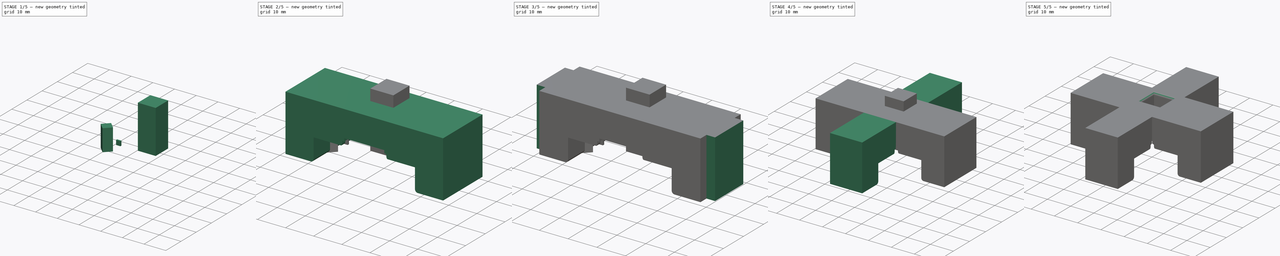
[diagram: build sequence overview — one tinted view per stage of 5, left to right]
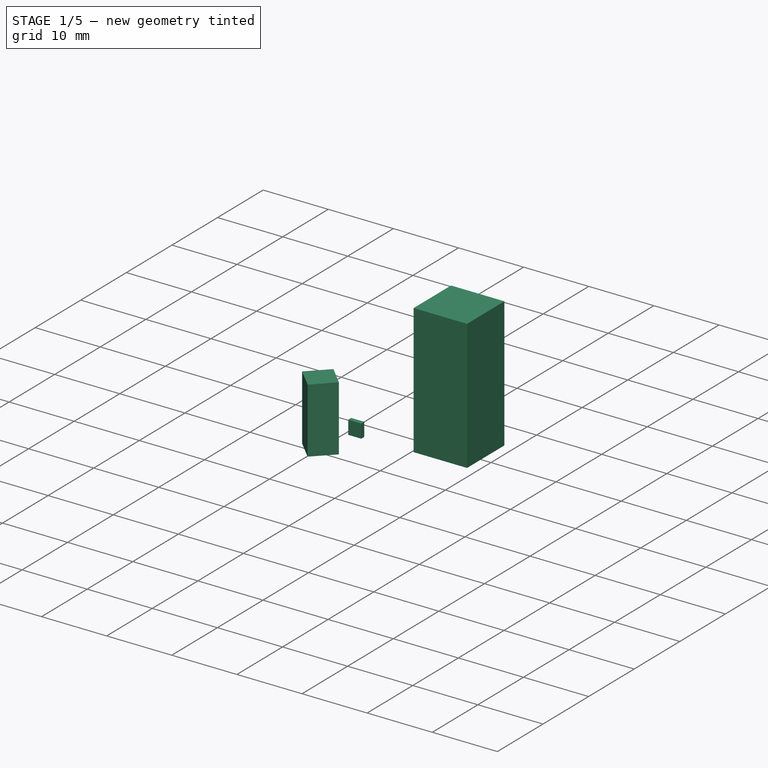
[diagram: stage 1 of 5 — iso view after this stage's code; geometry added in this stage tinted green]
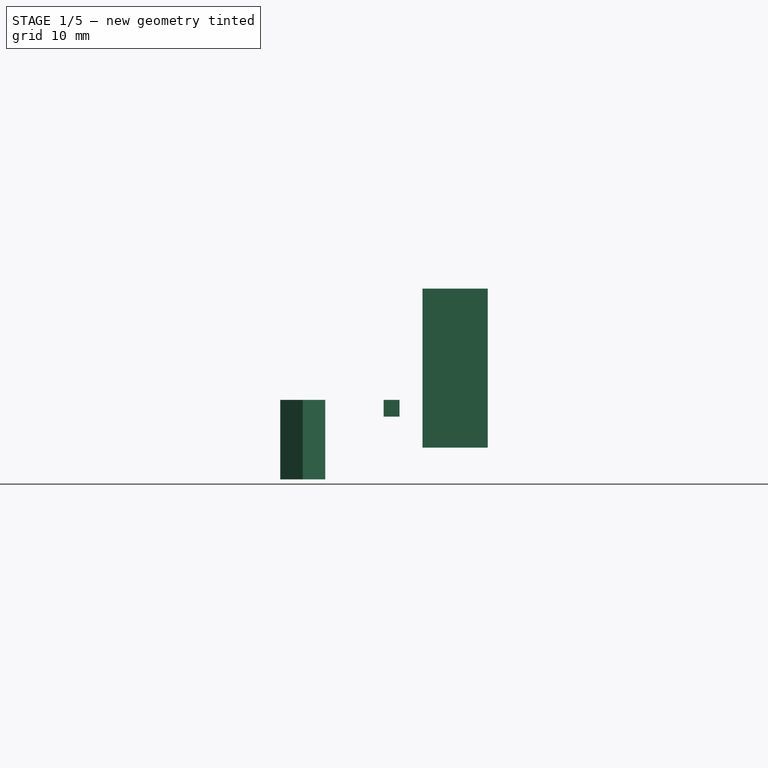
[diagram: stage 1 of 5 — front view after this stage's code; geometry added in this stage tinted green]
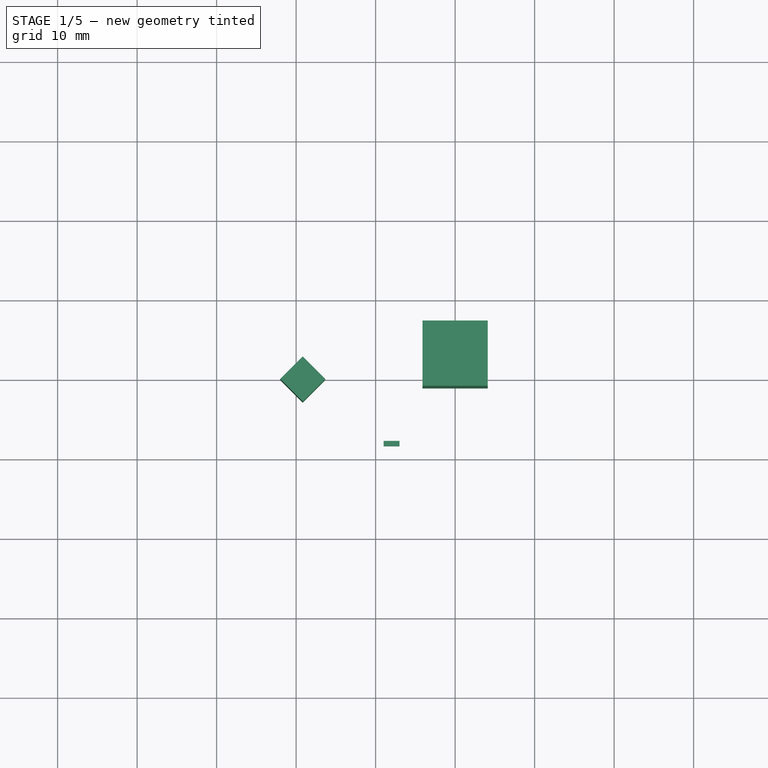
[diagram: stage 1 of 5 — top view after this stage's code; geometry added in this stage tinted green]
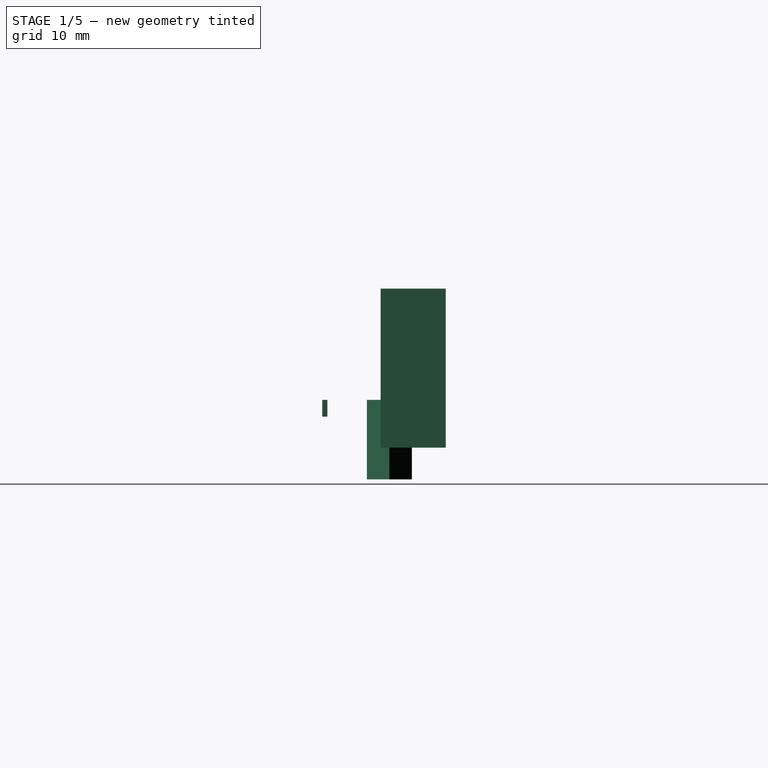
[diagram: stage 1 of 5 — right view after this stage's code; geometry added in this stage tinted green]
FCSTD DOCUMENT  (FreeCAD 1.0R39319 (Git))
Label: Xbox_OG_v1.6_RAM_Pin_Folder_Tool_Cover_v3.0
License: All rights reserved
LicenseURL: https://en.wikipedia.org/wiki/All_rights_reserved
objects: PartDesign::Fillet×4, Part::Box×3, Sketcher::SketchObject×2, PartDesign::Pad×2, PartDesign::Body×2, Part::MultiFuse×2, Part::Cut×2, Part::Fillet×2, Part::Feature×1
note: 34 computed .brp shape members not serialized (recipe doc carries the construction recipe); baked Part::Feature solids carry a one-line shape summary decoded from their .brp

FEATURE [Part::Box] Box  label="Cube"
  AttacherType = Attacher::AttachEngine3D
  Height = 2.1
  Length = 2
  Placement = pos=(-9,-8.45,7.9) rot=(0,0,1;0rad)
  Width = 0.65
FEATURE [Part::Box] Box001  label="Notch"
  AttacherType = Attacher::AttachEngine3D
  Height = 10
  Length = 4
  Placement = pos=(-22,0,0) rot=(0,0,-1;0.785398rad)
  Width = 4
FEATURE [Part::Box] Box002  label="Cube001"
  AttacherType = Attacher::AttachEngine3D
  Height = 20
  Length = 8.2
  Placement = pos=(-4.1,-1.1,4) rot=(0,0,1;0rad)
  Width = 8.2
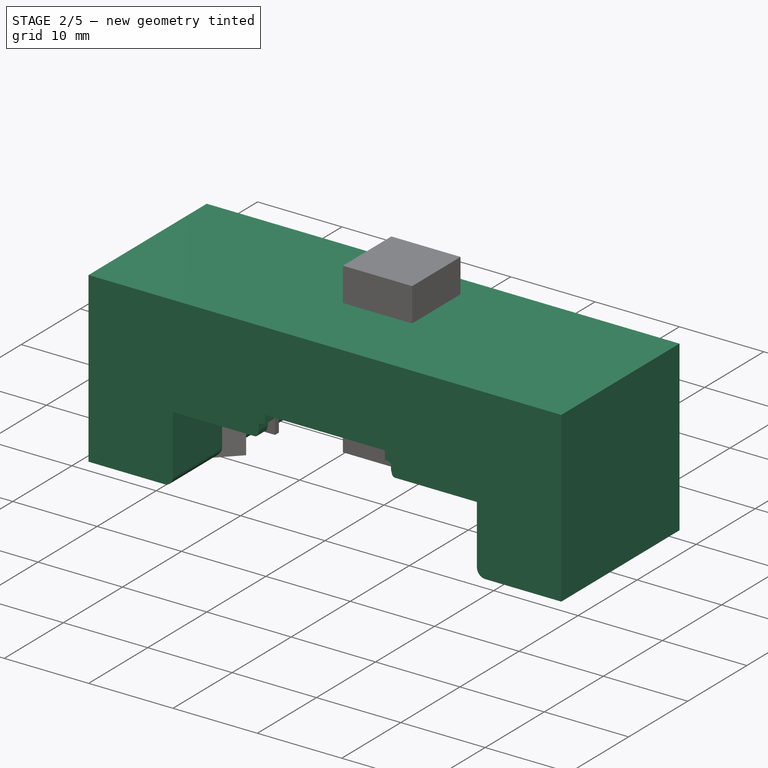
[diagram: stage 2 of 5 — iso view after this stage's code; geometry added in this stage tinted green]
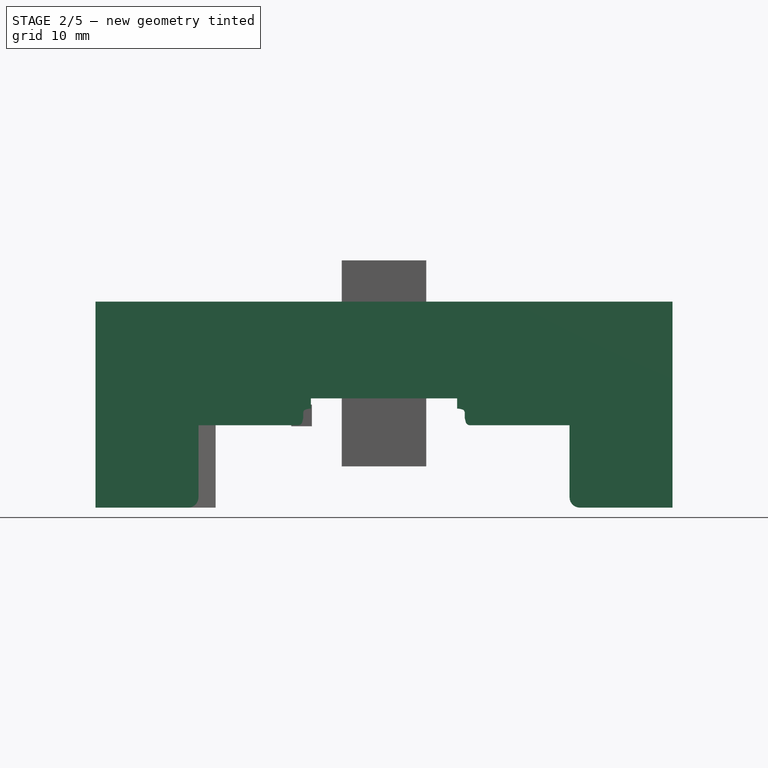
[diagram: stage 2 of 5 — front view after this stage's code; geometry added in this stage tinted green]
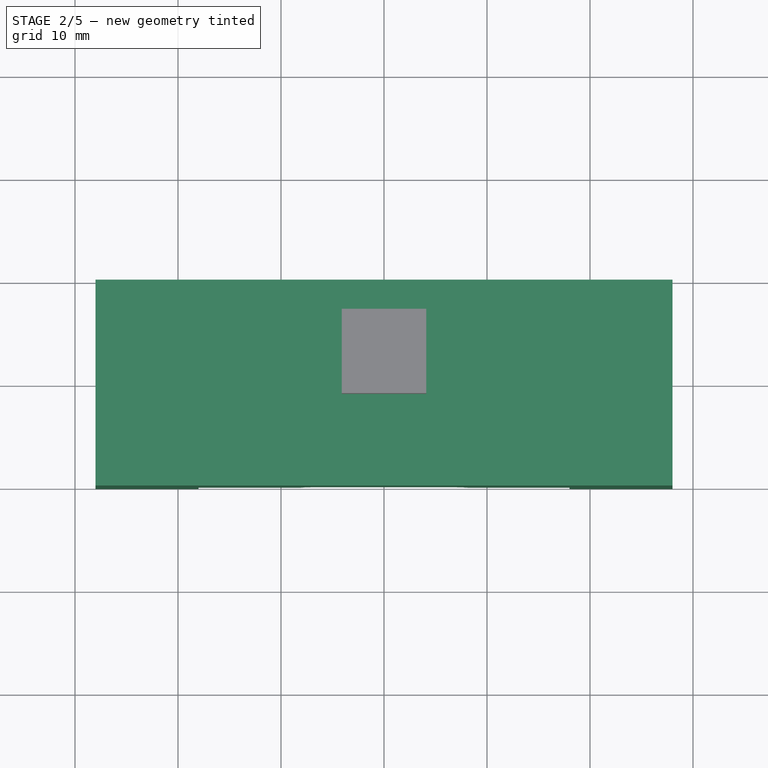
[diagram: stage 2 of 5 — top view after this stage's code; geometry added in this stage tinted green]
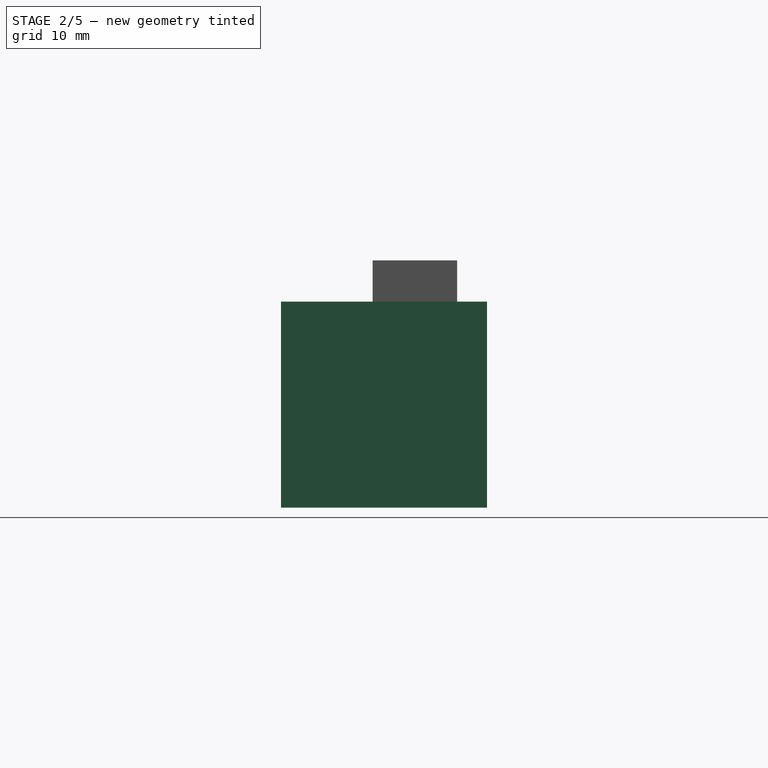
[diagram: stage 2 of 5 — right view after this stage's code; geometry added in this stage tinted green]
FEATURE [Sketcher::SketchObject] Sketch
  ArcFitTolerance = 1e-06
  AttachmentSupport = -> [XZ_Plane]
  FullyConstrained = true
  MakeInternals = false
  MapMode = 5
  Placement = pos=(0,0,0) rot=(1,0,0;1.5708rad)
  sketch-geometry (24):
    g0: LineSegment StartX=0 StartY=10.6091 StartZ=0 EndX=7.1 EndY=10.6091 EndZ=0
    g1: LineSegment StartX=7.1 StartY=10.6091 StartZ=0 EndX=7.1 EndY=9.60911 EndZ=0
    g2: ArcOfCircle CenterX=7.1 CenterY=8.11411 CenterZ=0 NormalX=0 NormalY=0 NormalZ=1 AngleXU=0 Radius=1.495 StartAngle=1.20428 EndAngle=1.5708
    g3: ArcOfCircle CenterX=7.52287 CenterY=9.21574 CenterZ=0 NormalX=0 NormalY=0 NormalZ=1 AngleXU=0 Radius=0.315 StartAngle=1.5e-15 EndAngle=1.20428
    g4: LineSegment StartX=7.83787 StartY=9.21574 StartZ=0 EndX=7.83787 EndY=8.74574 EndZ=0
    g5: ArcOfCircle CenterX=8.11287 CenterY=8.74574 CenterZ=0 NormalX=0 NormalY=0 NormalZ=1 AngleXU=0 Radius=0.275 StartAngle=3.14159 EndAngle=3.38594
    g6: LineSegment StartX=7.84604 StartY=8.67921 StartZ=0 EndX=8.01539 EndY=8 EndZ=0
    g7: LineSegment StartX=8.01539 StartY=8 StartZ=0 EndX=18.0154 EndY=8 EndZ=0
    g8: LineSegment StartX=18.0154 StartY=8 StartZ=0 EndX=18.0154 EndY=0 EndZ=0
    g9: LineSegment StartX=18.0154 StartY=0 StartZ=0 EndX=28.0154 EndY=0 EndZ=0
    g10: LineSegment StartX=28.0154 StartY=0 StartZ=0 EndX=28.0154 EndY=20 EndZ=0
    g11: LineSegment StartX=28.0154 StartY=20 StartZ=0 EndX=0 EndY=20 EndZ=0
    g12: LineSegment StartX=0 StartY=10.6091 StartZ=0 EndX=-7.1 EndY=10.6091 EndZ=0
    g13: LineSegment StartX=-7.1 StartY=10.6091 StartZ=0 EndX=-7.1 EndY=9.60911 EndZ=0
    g14: ArcOfCircle CenterX=-7.1 CenterY=8.11411 CenterZ=0 NormalX=0 NormalY=0 NormalZ=1 AngleXU=0 Radius=1.495 StartAngle=1.5708 EndAngle=1.93732
    g15: ArcOfCircle CenterX=-7.52287 CenterY=9.21574 CenterZ=0 NormalX=0 NormalY=0 NormalZ=1 AngleXU=0 Radius=0.315 StartAngle=1.93732 EndAngle=3.14159
    g16: LineSegment StartX=-7.83787 StartY=9.21574 StartZ=0 EndX=-7.83787 EndY=8.74574 EndZ=0
    g17: ArcOfCircle CenterX=-8.11287 CenterY=8.74574 CenterZ=0 NormalX=0 NormalY=0 NormalZ=1 AngleXU=0 Radius=0.275 StartAngle=6.03884 EndAngle=6.28319
    g18: LineSegment StartX=-7.84604 StartY=8.67921 StartZ=0 EndX=-8.01539 EndY=8 EndZ=0
    g19: LineSegment StartX=-8.01539 StartY=8 StartZ=0 EndX=-18.0154 EndY=8 EndZ=0
    g20: LineSegment StartX=-18.0154 StartY=8 StartZ=0 EndX=-18.0154 EndY=0 EndZ=0
    g21: LineSegment StartX=-18.0154 StartY=0 StartZ=0 EndX=-28.0154 EndY=0 EndZ=0
    g22: LineSegment StartX=-28.0154 StartY=0 StartZ=0 EndX=-28.0154 EndY=20 EndZ=0
    g23: LineSegment StartX=-28.0154 StartY=20 StartZ=0 EndX=0 EndY=20 EndZ=0
  constraints (63):
    c: Horizontal(g0)
    c: DistanceX(g0,g0) = 7.1
    c: DistanceY(g0,g1) = -1
    c: Coincident(g1,g0)
    c: Perpendicular(g0,g1)
    c: Coincident(g1,g2)
    c: PointOnObject(g2,g1)
    c: Radius(g2) = 1.495
    c: Angle(g2) = 0.366519
    c: Radius(g3) = 0.315
    c: Angle(g3) = 1.20428
    c: Tangent(g2,g3) = -1.5708
    c: Distance(g4) = 0.47
    c: Tangent(g3,g4) = 1.5708
    c: Tangent(g4,g5) = -1.5708
    c: Radius(g5) = 0.275
    c: Angle(g5) = 0.244346
    c: Distance(g6) = 0.7
    c: Tangent(g5,g6) = -1.5708
    c: Distance(g7) = 10
    c: Parallel(g0,g7)
    c: Coincident(g6,g7)
    c: Vertical(g-1,g0)
    c: Coincident(g8,g7)
    c: Parallel(g8,g-2)
    c: Horizontal(g8,g-1)
    c: DistanceY(g8,g8) = 8
    c: Distance(g9) = 10
    c: Coincident(g9,g8)
    c: PointOnObject(g9,g-1)
    c: Distance(g10) = 20
    c: Coincident(g10,g9)
    c: Vertical(g10)
    c: Coincident(g11,g10)
    c: PointOnObject(g11,g-2)
    c: Horizontal(g11)
    c: Symmetric(g0,g12,g-2)
    c: Symmetric(g1,g13,g-2)
    c: Symmetric(g1,g13,g-2)
    c: Equal(g2,g14)
    c: Symmetric(g2,g14,g-2)
    c: Symmetric(g2,g14,g-2)
    c: Equal(g3,g15)
    c: Symmetric(g3,g15,g-2)
    c: Symmetric(g3,g15,g-2)
    c: Symmetric(g4,g16,g-2)
    c: Symmetric(g4,g16,g-2)
    c: Equal(g5,g17)
    c: Symmetric(g5,g17,g-2)
    c: Symmetric(g5,g17,g-2)
    c: Symmetric(g6,g18,g-2)
    c: Symmetric(g6,g18,g-2)
    c: Symmetric(g7,g19,g-2)
    c: Symmetric(g7,g19,g-2)
    c: Symmetric(g8,g20,g-2)
    c: Symmetric(g8,g20,g-2)
    c: Symmetric(g9,g21,g-2)
    c: Symmetric(g9,g21,g-2)
    c: Symmetric(g10,g22,g-2)
    c: Symmetric(g10,g22,g-2)
    c: Symmetric(g11,g23,g-2)
    c: Coincident(g12,g0)
    c: Coincident(g23,g11)
FEATURE [PartDesign::Pad] Pad
  Direction = (0,-1,2e-16)
  Length = 20
  Length2 = 10
  Midplane = true
  Placement = pos=(0,0,0) rot=(1,0,0;1.5708rad)
  Profile = -> Sketch
  ReferenceAxis = -> Sketch [N_Axis]
  Refine = true
  Suppressed = false
  Type = 0
FEATURE [PartDesign::Fillet] Fillet
  Base = -> Pad [Edge17,Edge51]
  BaseFeature = -> Pad
  Placement = pos=(0,0,0) rot=(1,0,0;1.5708rad)
  Radius = 0.4
  Refine = true
  SupportTransform = false
  Suppressed = false
  UseAllEdges = false
FEATURE [PartDesign::Body] Body001  label="Width_Cover"
  AllowCompound = false
  Group = -> [Sketch001,Pad001,Fillet001,Fillet002]
  Origin = -> Origin001
  Placement = pos=(0,0,0) rot=(0,0,1;1.5708rad)
  Tip = -> Fillet002
FEATURE [PartDesign::Fillet] Fillet003
  Base = -> Fillet [Edge65,Edge55]
  BaseFeature = -> Fillet
  Placement = pos=(0,0,0) rot=(1,0,0;1.5708rad)
  Radius = 1
  Refine = true
  SupportTransform = false
  Suppressed = false
  UseAllEdges = false
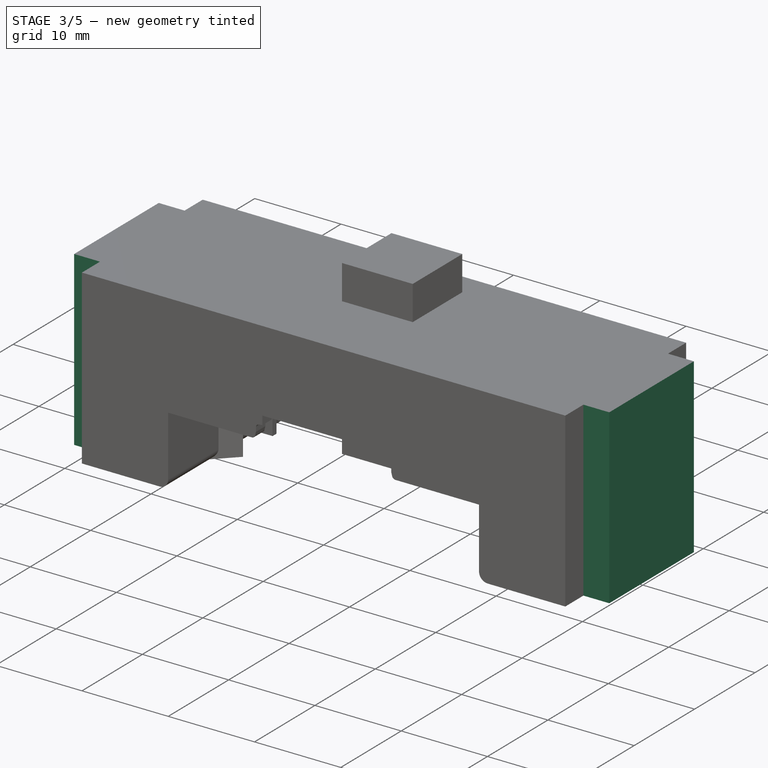
[diagram: stage 3 of 5 — iso view after this stage's code; geometry added in this stage tinted green]
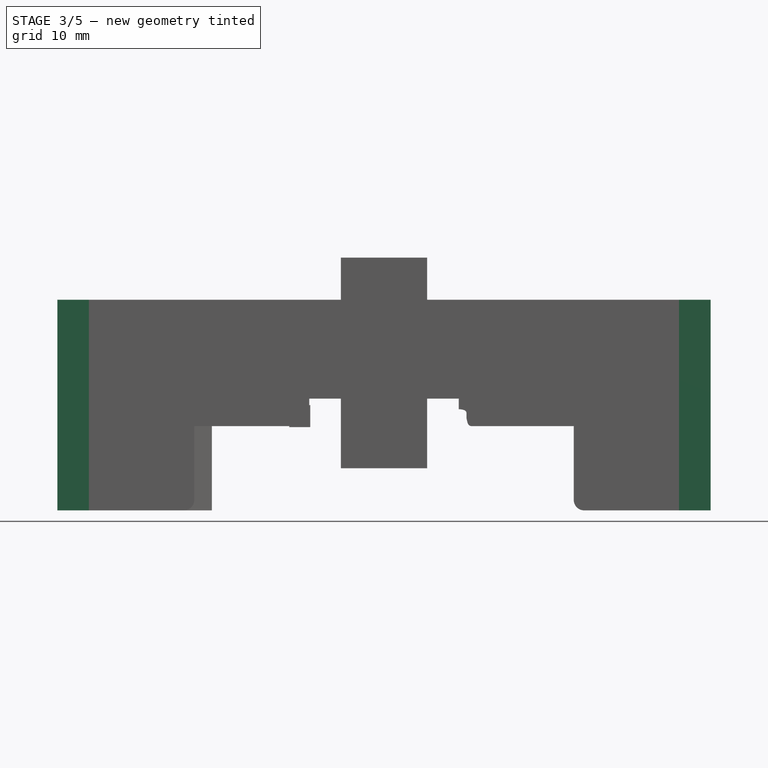
[diagram: stage 3 of 5 — front view after this stage's code; geometry added in this stage tinted green]
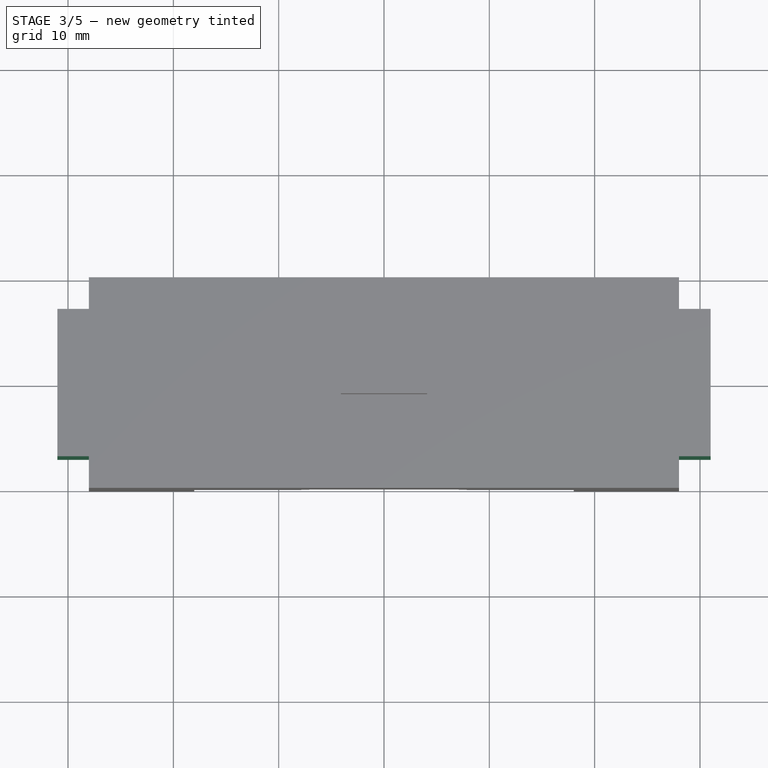
[diagram: stage 3 of 5 — top view after this stage's code; geometry added in this stage tinted green]
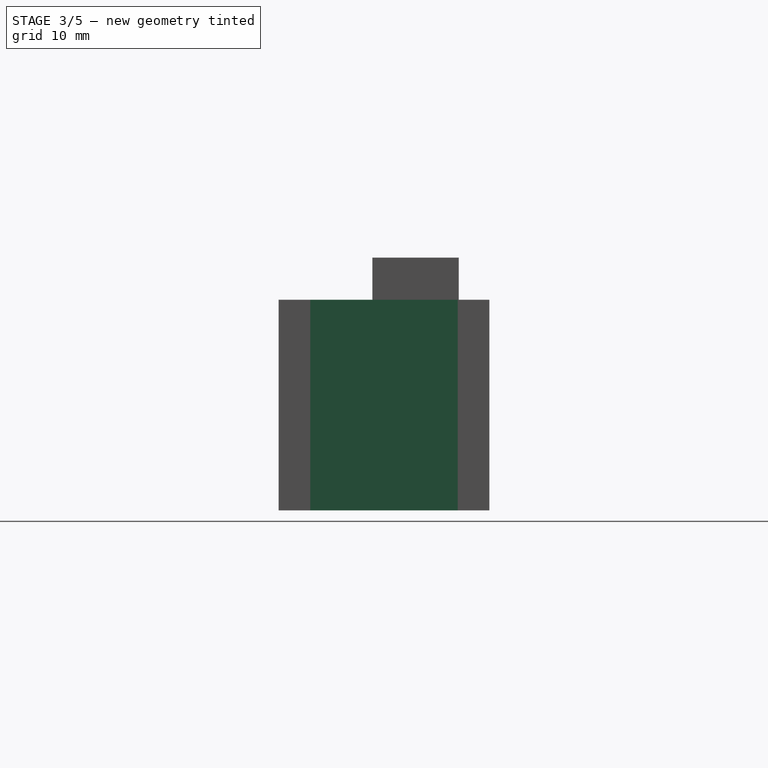
[diagram: stage 3 of 5 — right view after this stage's code; geometry added in this stage tinted green]
FEATURE [Sketcher::SketchObject] Sketch001
  ArcFitTolerance = 1e-06
  AttachmentSupport = -> [XZ_Plane001]
  FullyConstrained = true
  MakeInternals = false
  MapMode = 5
  Placement = pos=(0,0,0) rot=(1,0,0;1.5708rad)
  sketch-geometry (24):
    g0: LineSegment StartX=0 StartY=10.6084 StartZ=0 EndX=10.1 EndY=10.6084 EndZ=0
    g1: LineSegment StartX=10.1 StartY=10.6084 StartZ=0 EndX=10.1 EndY=9.60845 EndZ=0
    g2: ArcOfCircle CenterX=10.1 CenterY=8.12345 CenterZ=0 NormalX=0 NormalY=0 NormalZ=1 AngleXU=0 Radius=1.485 StartAngle=1.20428 EndAngle=1.5708
    g3: ArcOfCircle CenterX=10.5193 CenterY=9.21574 CenterZ=0 NormalX=0 NormalY=0 NormalZ=1 AngleXU=0 Radius=0.315 StartAngle=-4.4e-15 EndAngle=1.20428
    g4: LineSegment StartX=10.8343 StartY=9.21574 StartZ=0 EndX=10.8343 EndY=8.74574 EndZ=0
    g5: ArcOfCircle CenterX=11.1093 CenterY=8.74574 CenterZ=0 NormalX=0 NormalY=0 NormalZ=1 AngleXU=0 Radius=0.275 StartAngle=3.14159 EndAngle=3.38594
    g6: LineSegment StartX=10.8425 StartY=8.67921 StartZ=0 EndX=11.0118 EndY=8 EndZ=0
    g7: LineSegment StartX=11.0118 StartY=8 StartZ=0 EndX=21.0118 EndY=8 EndZ=0
    g8: LineSegment StartX=21.0118 StartY=8 StartZ=0 EndX=21.0118 EndY=0 EndZ=0
    g9: LineSegment StartX=21.0118 StartY=0 StartZ=0 EndX=31.0118 EndY=0 EndZ=0
    g10: LineSegment StartX=31.0118 StartY=0 StartZ=0 EndX=31.0118 EndY=20 EndZ=0
    g11: LineSegment StartX=31.0118 StartY=20 StartZ=0 EndX=0 EndY=20 EndZ=0
    g12: LineSegment StartX=0 StartY=10.6084 StartZ=0 EndX=-10.1 EndY=10.6084 EndZ=0
    g13: LineSegment StartX=-10.1 StartY=10.6084 StartZ=0 EndX=-10.1 EndY=9.60845 EndZ=0
    g14: ArcOfCircle CenterX=-10.1 CenterY=8.12345 CenterZ=0 NormalX=0 NormalY=0 NormalZ=1 AngleXU=0 Radius=1.485 StartAngle=1.5708 EndAngle=1.93732
    g15: ArcOfCircle CenterX=-10.5193 CenterY=9.21574 CenterZ=0 NormalX=0 NormalY=0 NormalZ=1 AngleXU=0 Radius=0.315 StartAngle=1.93732 EndAngle=3.14159
    g16: LineSegment StartX=-10.8343 StartY=9.21574 StartZ=0 EndX=-10.8343 EndY=8.74574 EndZ=0
    g17: ArcOfCircle CenterX=-11.1093 CenterY=8.74574 CenterZ=0 NormalX=0 NormalY=0 NormalZ=1 AngleXU=0 Radius=0.275 StartAngle=6.03884 EndAngle=6.28319
    g18: LineSegment StartX=-10.8425 StartY=8.67921 StartZ=0 EndX=-11.0118 EndY=8 EndZ=0
    g19: LineSegment StartX=-11.0118 StartY=8 StartZ=0 EndX=-21.0118 EndY=8 EndZ=0
    g20: LineSegment StartX=-21.0118 StartY=8 StartZ=0 EndX=-21.0118 EndY=0 EndZ=0
    g21: LineSegment StartX=-21.0118 StartY=0 StartZ=0 EndX=-31.0118 EndY=0 EndZ=0
    g22: LineSegment StartX=-31.0118 StartY=0 StartZ=0 EndX=-31.0118 EndY=20 EndZ=0
    g23: LineSegment StartX=-31.0118 StartY=20 StartZ=0 EndX=0 EndY=20 EndZ=0
  constraints (63):
    c: Horizontal(g0)
    c: DistanceX(g0,g0) = 10.1
    c: DistanceY(g0,g1) = -1
    c: Coincident(g1,g0)
    c: Perpendicular(g0,g1)
    c: Coincident(g1,g2)
    c: PointOnObject(g2,g1)
    c: Radius(g2) = 1.485
    c: Angle(g2) = 0.366519
    c: Radius(g3) = 0.315
    c: Angle(g3) = 1.20428
    c: Tangent(g2,g3) = -1.5708
    c: Distance(g4) = 0.47
    c: Tangent(g3,g4) = 1.5708
    c: Tangent(g4,g5) = -1.5708
    c: Radius(g5) = 0.275
    c: Angle(g5) = 0.244346
    c: Distance(g6) = 0.7
    c: Tangent(g5,g6) = -1.5708
    c: Distance(g7) = 10
    c: Parallel(g0,g7)
    c: Coincident(g6,g7)
    c: Vertical(g-1,g0)
    c: Coincident(g8,g7)
    c: Parallel(g8,g-2)
    c: Horizontal(g8,g-1)
    c: DistanceY(g8,g8) = 8
    c: Coincident(g9,g8)
    c: Distance(g9,g9) = 10
    c: Parallel(g9,g-1)
    c: Coincident(g10,g9)
    c: DistanceY(g10,g10) = 20
    c: Coincident(g11,g10)
    c: Parallel(g11,g-1)
    c: PointOnObject(g11,g-2)
    c: Symmetric(g0,g12,g-2)
    c: Symmetric(g1,g13,g-2)
    c: Symmetric(g1,g13,g-2)
    c: Equal(g2,g14)
    c: Symmetric(g2,g14,g-2)
    c: Symmetric(g2,g14,g-2)
    c: Equal(g3,g15)
    c: Symmetric(g3,g15,g-2)
    c: Symmetric(g3,g15,g-2)
    c: Symmetric(g4,g16,g-2)
    c: Symmetric(g4,g16,g-2)
    c: Equal(g5,g17)
    c: Symmetric(g5,g17,g-2)
    c: Symmetric(g5,g17,g-2)
    c: Symmetric(g6,g18,g-2)
    c: Symmetric(g6,g18,g-2)
    c: Symmetric(g7,g19,g-2)
    c: Symmetric(g7,g19,g-2)
    c: Symmetric(g8,g20,g-2)
    c: Symmetric(g8,g20,g-2)
    c: Symmetric(g9,g21,g-2)
    c: Symmetric(g9,g21,g-2)
    c: Symmetric(g10,g22,g-2)
    c: Symmetric(g10,g22,g-2)
    c: Symmetric(g11,g23,g-2)
    c: Coincident(g12,g0)
    c: Coincident(g23,g11)
    c: Parallel(g10,g-2)
FEATURE [PartDesign::Pad] Pad001
  Direction = (0,-1,2e-16)
  Length = 14
  Length2 = 10
  Midplane = true
  Placement = pos=(0,0,0) rot=(1,0,0;1.5708rad)
  Profile = -> Sketch001
  ReferenceAxis = -> Sketch001 [N_Axis]
  Refine = true
  Suppressed = false
  Type = 0
FEATURE [PartDesign::Fillet] Fillet001
  Base = -> Pad001 [Edge17,Edge51]
  BaseFeature = -> Pad001
  Placement = pos=(0,0,0) rot=(1,0,0;1.5708rad)
  Radius = 0.4
  Refine = true
  SupportTransform = false
  Suppressed = false
  UseAllEdges = false
FEATURE [PartDesign::Fillet] Fillet002
  Base = -> Fillet001 [Edge65,Edge55]
  BaseFeature = -> Fillet001
  Placement = pos=(0,0,0) rot=(1,0,0;1.5708rad)
  Radius = 1
  Refine = true
  SupportTransform = false
  Suppressed = false
  UseAllEdges = false
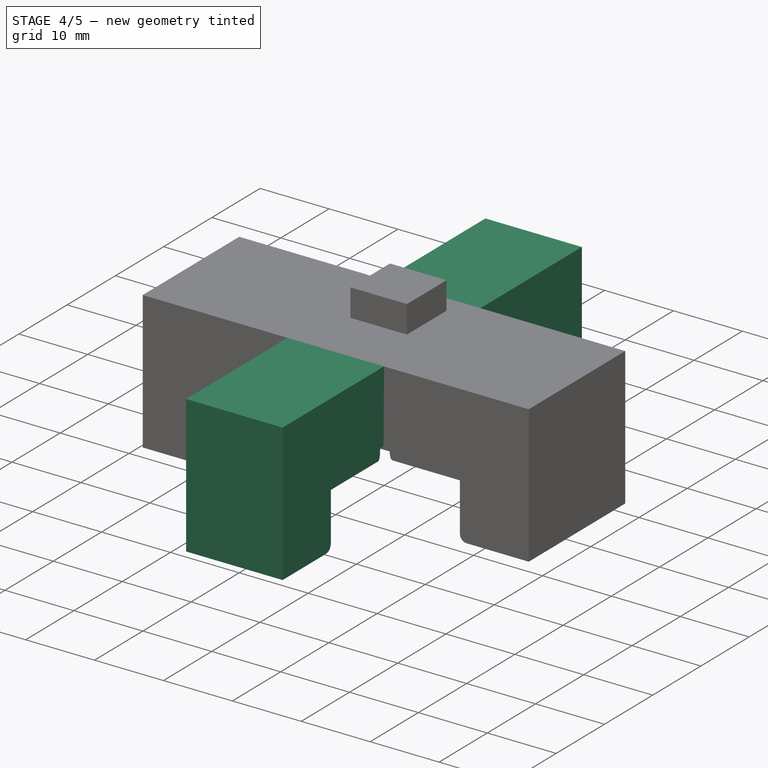
[diagram: stage 4 of 5 — iso view after this stage's code; geometry added in this stage tinted green]
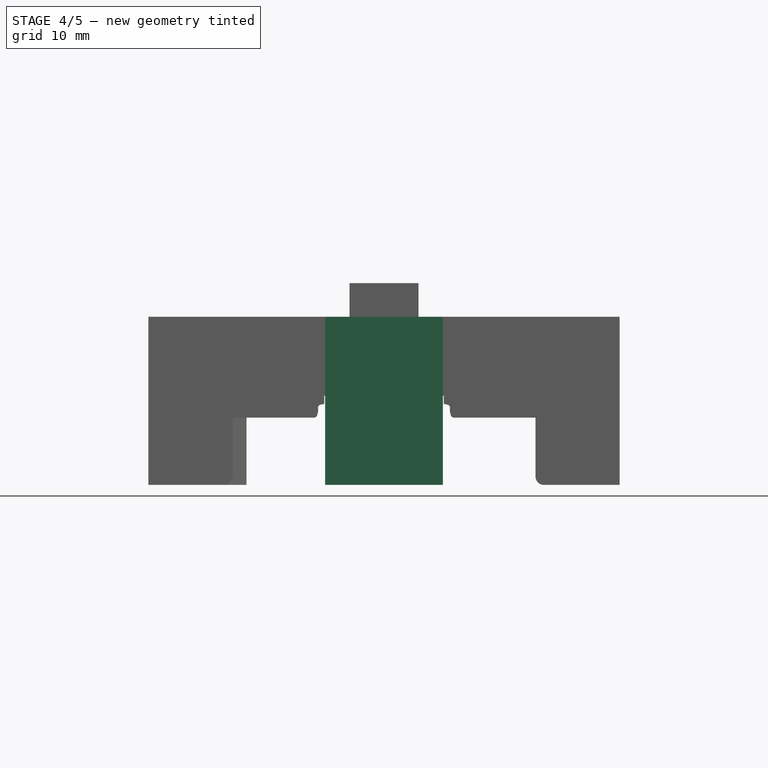
[diagram: stage 4 of 5 — front view after this stage's code; geometry added in this stage tinted green]
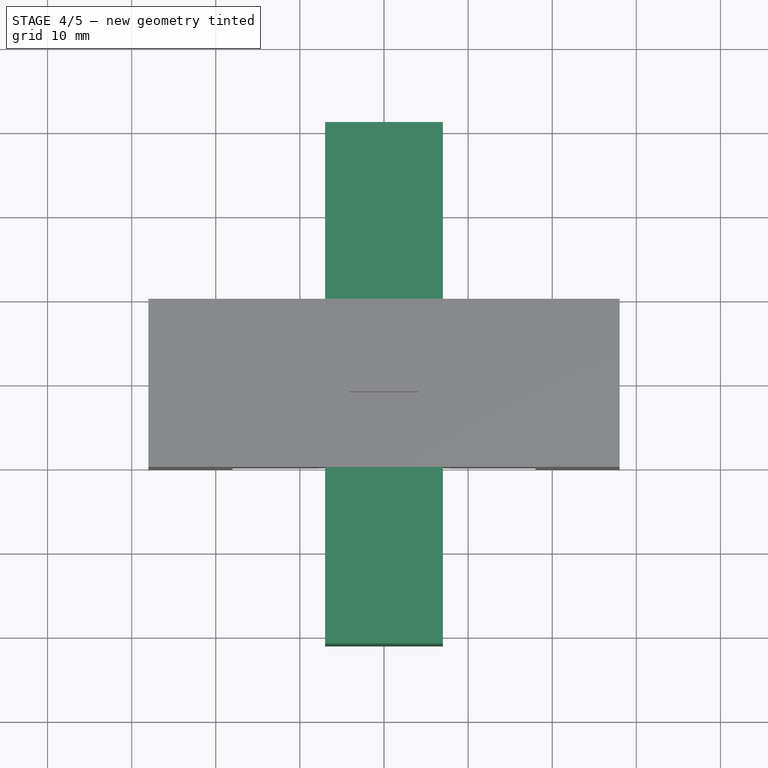
[diagram: stage 4 of 5 — top view after this stage's code; geometry added in this stage tinted green]
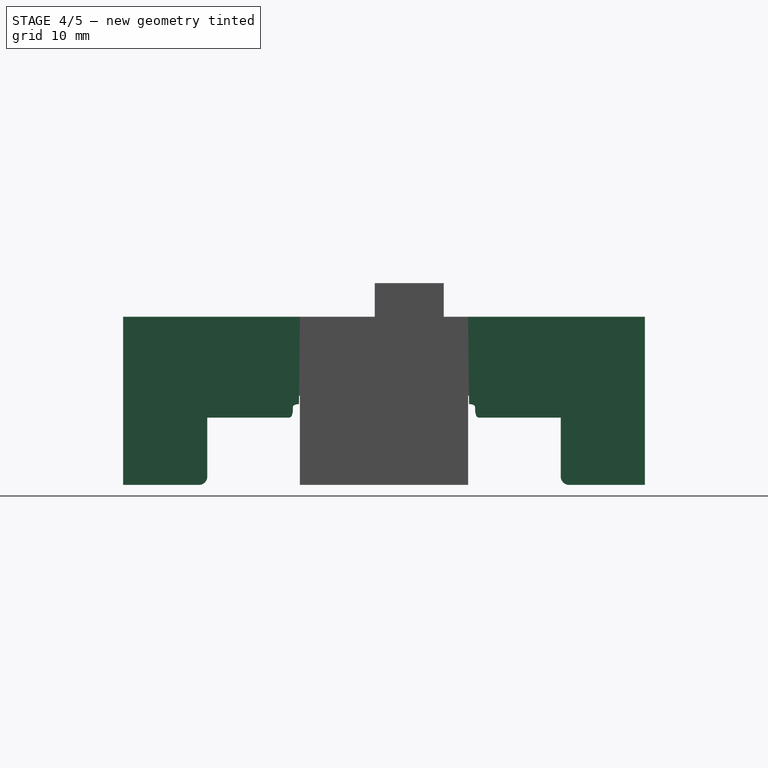
[diagram: stage 4 of 5 — right view after this stage's code; geometry added in this stage tinted green]
FEATURE [PartDesign::Body] Body  label="Length_Cover"
  AllowCompound = false
  Group = -> [Sketch,Pad,Fillet,Fillet003]
  Origin = -> Origin
  Tip = -> Fillet003
FEATURE [Part::MultiFuse] Fusion
  Refine = true
  Shapes = -> [Body,Body001]
FEATURE [Part::Feature] Part__Feature  label="PQFP-100_14x20mm_P0.65mm - K4D263238F v1"
  Placement = pos=(0,0,7.35) rot=(0,0,1;0rad)
  shape: bbox 17.21 x 23.21 x 1.211 mm, 1544 faces (baked)
FEATURE [Part::Cut] Cut
  Base = -> Fusion
  Refine = true
  Tool = -> Box
FEATURE [Part::MultiFuse] Fusion001
  Refine = true
  Shapes = -> [Cut,Box001]
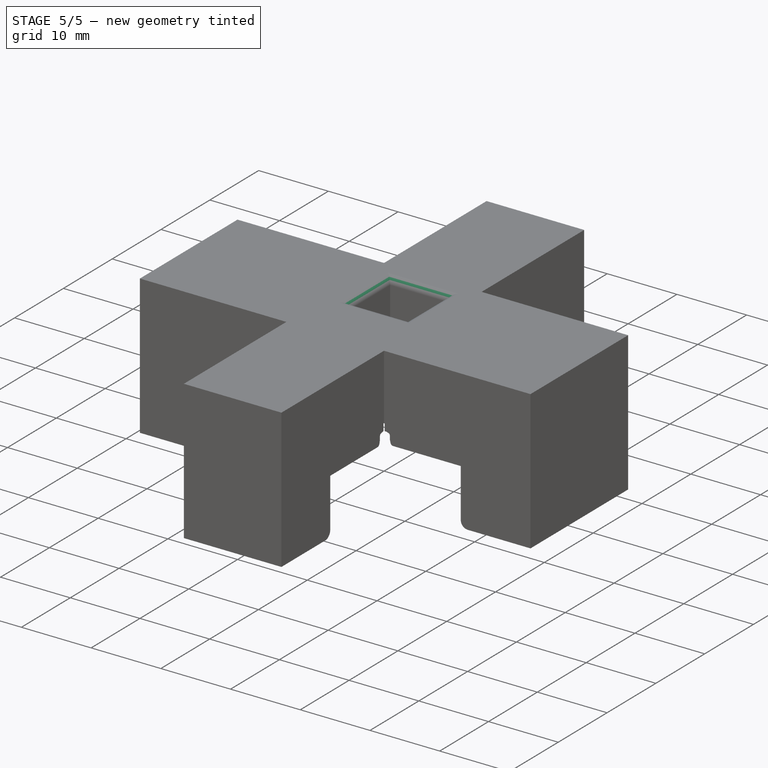
[diagram: stage 5 of 5 — iso view after this stage's code; geometry added in this stage tinted green]
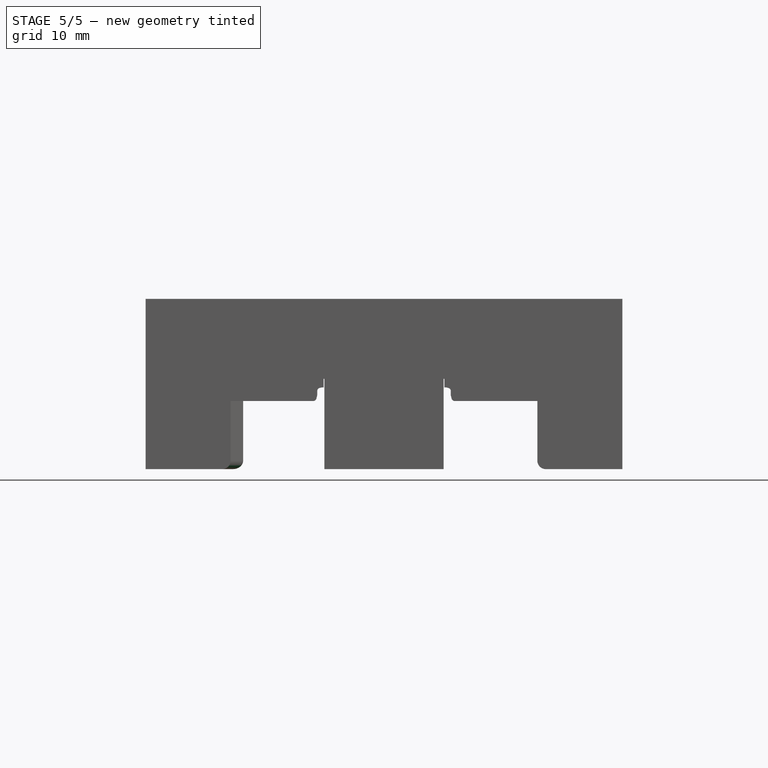
[diagram: stage 5 of 5 — front view after this stage's code; geometry added in this stage tinted green]
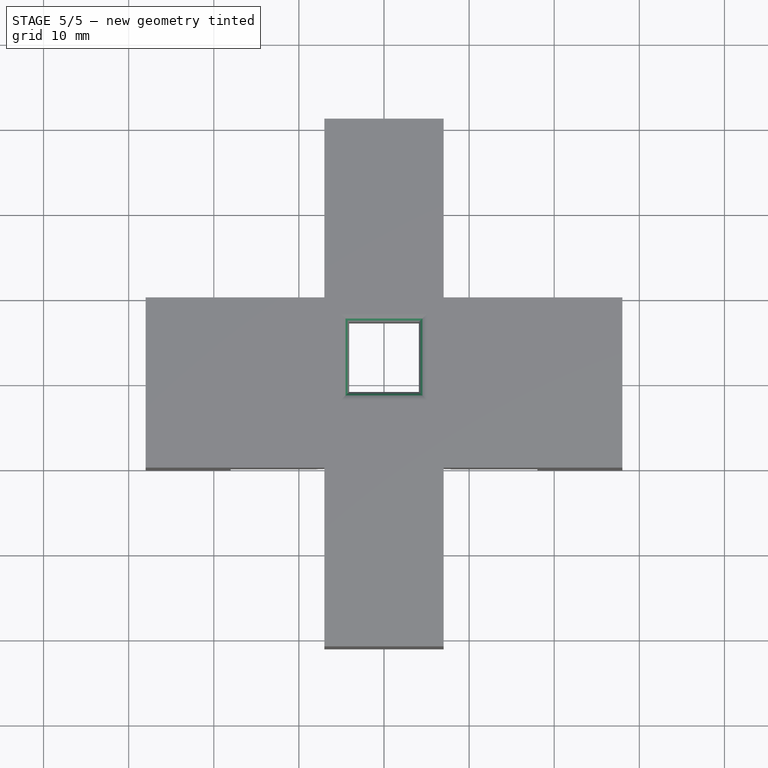
[diagram: stage 5 of 5 — top view after this stage's code; geometry added in this stage tinted green]
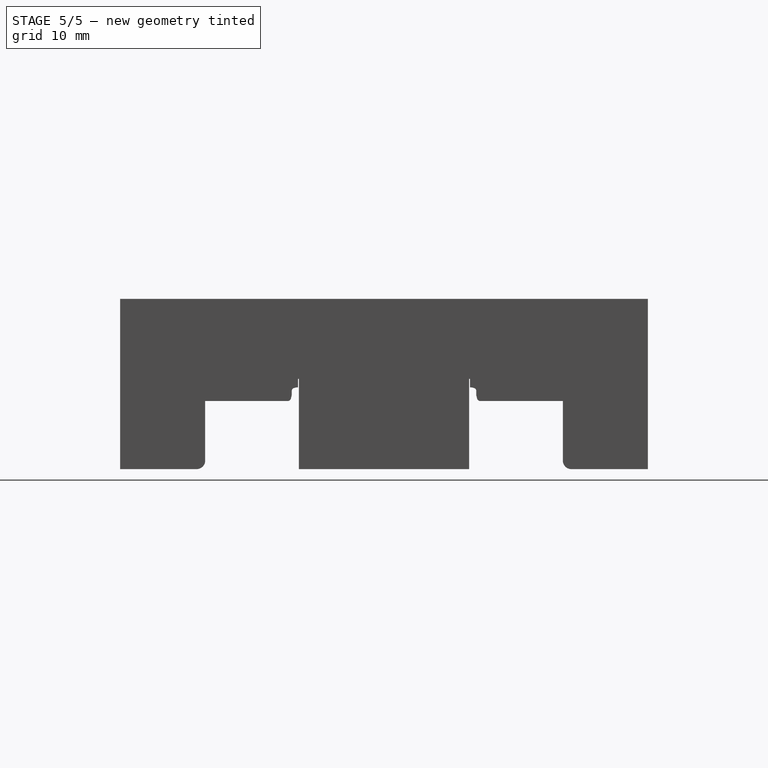
[diagram: stage 5 of 5 — right view after this stage's code; geometry added in this stage tinted green]
FEATURE [Part::Cut] Cut001
  Base = -> Fusion001
  Refine = true
  Tool = -> Box002
FEATURE [Part::Fillet] Fillet004
  Base = -> Cut001
  EdgeLinks = -> Cut001 [Edge27,Edge28,Edge29,Edge30,Edge34,Edge35]
  Edges = 6 edges r=1: [Edge27,Edge28,Edge29,Edge30,Edge34,Edge35]
FEATURE [Part::Fillet] Fillet005
  Base = -> Fillet004
  EdgeLinks = -> Fillet004 [Edge230]
  Edges = 1 edges r=0.5: [Edge230]
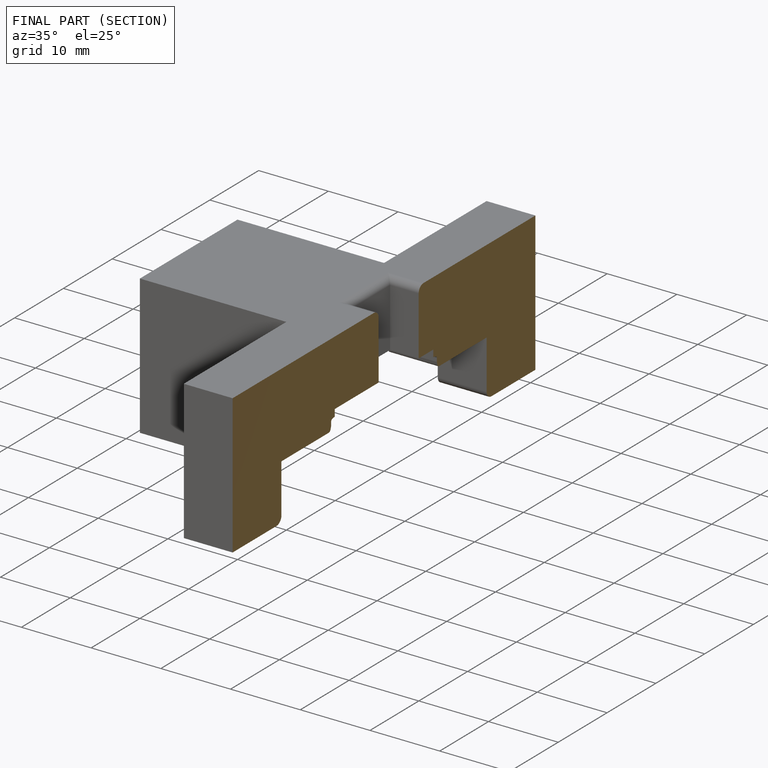
[diagram: finished part — half-section view (interior)]
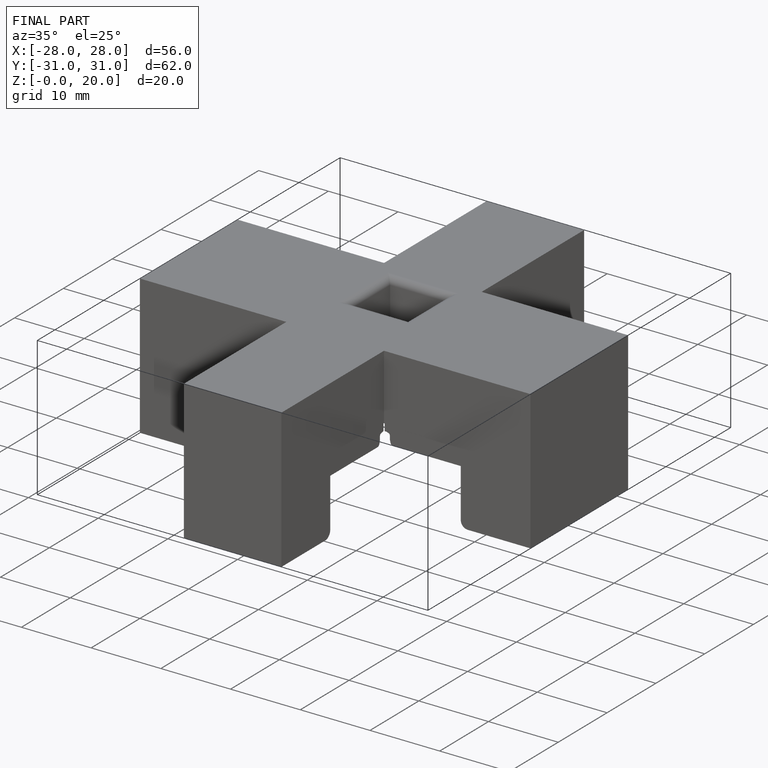
[diagram: finished part — iso view with bounding-box wireframe]
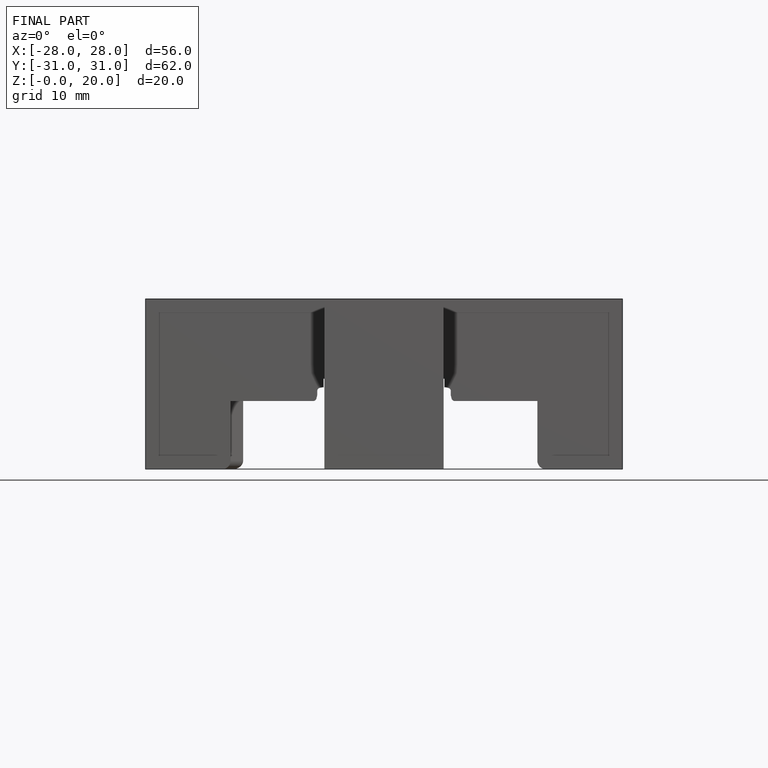
[diagram: finished part — front view with bounding-box wireframe]
